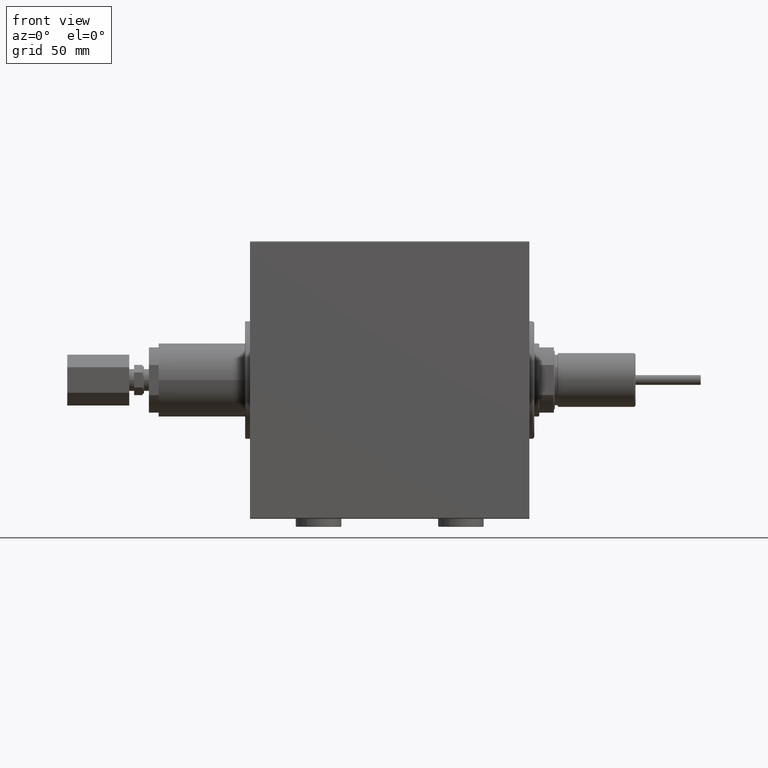
[diagram: clean part render]
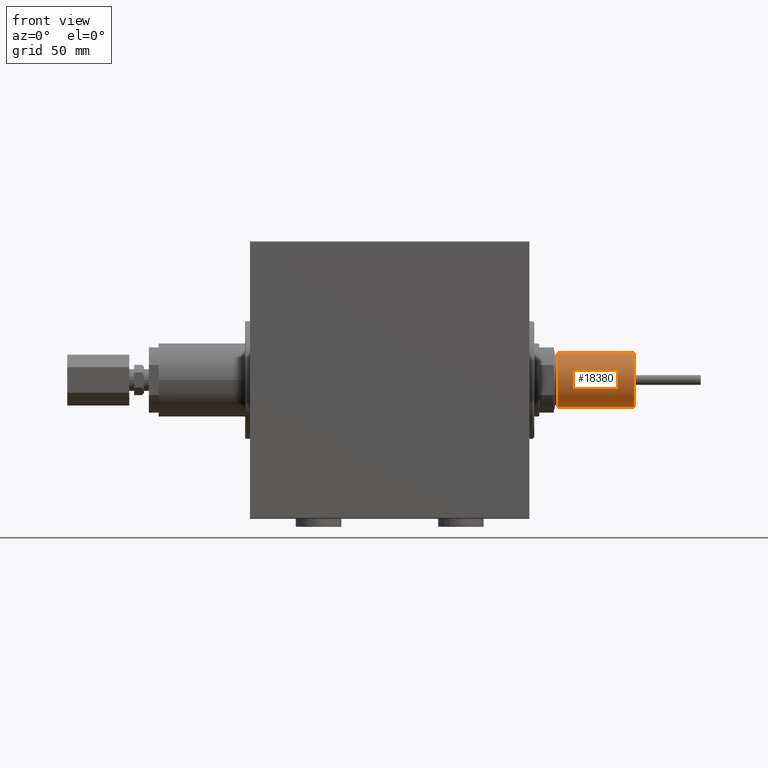
[diagram: same view with one face highlighted and labeled with its STEP entity id]
A machine part, front view. The second image highlights one B-rep face of the part: STEP entity #18380.
In plain terms, the highlighted cylindrical surface (edge-blend (fillet) strip) has radius 16.5 mm, axis along (1, -0, -0).
Its self-contained STEP definition (entity closure, byte-faithful):
#1760 = DIRECTION ( 'NONE',  ( 1.000000000000000000, 0.000000000000000000, 0.000000000000000000 ) ) ;
#5111 = CARTESIAN_POINT ( 'NONE',  ( 16.50000000000000000, 2.020667218593133100E-15, 47.50000000000000000 ) ) ;
#6010 = EDGE_LOOP ( 'NONE', ( #37396, #44256, #17176, #38882 ) ) ;
#7044 = EDGE_CURVE ( 'NONE', #18785, #34228, #40392, .T. ) ;
#7738 = EDGE_CURVE ( 'NONE', #34228, #34990, #27996, .T. ) ;
#8960 = AXIS2_PLACEMENT_3D ( 'NONE', #35546, #31128, #1760 ) ;
#9610 = CARTESIAN_POINT ( 'NONE',  ( 0.000000000000000000, 0.000000000000000000, 0.7999999999999951594 ) ) ;
#9931 = LINE ( 'NONE', #40240, #10756 ) ;
#10727 = VERTEX_POINT ( 'NONE', #45688 ) ;
#10756 = VECTOR ( 'NONE', #17559, 1000.000000000000000 ) ;
#11596 = CYLINDRICAL_SURFACE ( 'NONE', #37497, 16.50000000000000000 ) ;
#12410 = AXIS2_PLACEMENT_3D ( 'NONE', #9610, #16546, #20472 ) ;
#13203 = DIRECTION ( 'NONE',  ( -0.000000000000000000, -0.000000000000000000, -1.000000000000000000 ) ) ;
#15548 = FACE_OUTER_BOUND ( 'NONE', #6010, .T. ) ;
#16546 = DIRECTION ( 'NONE',  ( -0.000000000000000000, -0.000000000000000000, 1.000000000000000000 ) ) ;
#17176 = ORIENTED_EDGE ( 'NONE', *, *, #25298, .T. ) ;
#17559 = DIRECTION ( 'NONE',  ( -0.000000000000000000, -0.000000000000000000, -1.000000000000000000 ) ) ;
#18380 = ADVANCED_FACE ( 'NONE', ( #15548 ), #11596, .T. ) ;
#18785 = VERTEX_POINT ( 'NONE', #36577 ) ;
#20309 = EDGE_CURVE ( 'NONE', #10727, #34990, #33621, .T. ) ;
#20472 = DIRECTION ( 'NONE',  ( 1.000000000000000000, 0.000000000000000000, 0.000000000000000000 ) ) ;
#22922 = DIRECTION ( 'NONE',  ( -0.000000000000000000, -0.000000000000000000, -1.000000000000000000 ) ) ;
#25298 = EDGE_CURVE ( 'NONE', #18785, #10727, #9931, .T. ) ;
#27996 = LINE ( 'NONE', #46263, #32553 ) ;
#30574 = DIRECTION ( 'NONE',  ( -1.000000000000000000, 0.000000000000000000, 0.000000000000000000 ) ) ;
#31128 = DIRECTION ( 'NONE',  ( 0.000000000000000000, 0.000000000000000000, 1.000000000000000000 ) ) ;
#32553 = VECTOR ( 'NONE', #13203, 1000.000000000000000 ) ;
#33539 = CARTESIAN_POINT ( 'NONE',  ( 16.50000000000000000, 2.020667218593133100E-15, 0.7999999999999951594 ) ) ;
#33621 = CIRCLE ( 'NONE', #12410, 16.50000000000000000 ) ;
#34228 = VERTEX_POINT ( 'NONE', #5111 ) ;
#34990 = VERTEX_POINT ( 'NONE', #33539 ) ;
#35546 = CARTESIAN_POINT ( 'NONE',  ( 0.000000000000000000, 0.000000000000000000, 47.50000000000000000 ) ) ;
#36577 = CARTESIAN_POINT ( 'NONE',  ( -16.50000000000000000, 0.000000000000000000, 47.50000000000000000 ) ) ;
#37396 = ORIENTED_EDGE ( 'NONE', *, *, #7738, .F. ) ;
#37497 = AXIS2_PLACEMENT_3D ( 'NONE', #41667, #22922, #30574 ) ;
#38882 = ORIENTED_EDGE ( 'NONE', *, *, #20309, .T. ) ;
#40240 = CARTESIAN_POINT ( 'NONE',  ( -16.50000000000000000, 0.000000000000000000, 47.50000000000000000 ) ) ;
#40392 = CIRCLE ( 'NONE', #8960, 16.50000000000000000 ) ;
#41667 = CARTESIAN_POINT ( 'NONE',  ( 0.000000000000000000, 0.000000000000000000, 47.50000000000000000 ) ) ;
#44256 = ORIENTED_EDGE ( 'NONE', *, *, #7044, .F. ) ;
#45688 = CARTESIAN_POINT ( 'NONE',  ( -16.50000000000000000, 0.000000000000000000, 0.7999999999999951594 ) ) ;
#46263 = CARTESIAN_POINT ( 'NONE',  ( 16.50000000000000000, 2.020667218593133100E-15, 47.50000000000000000 ) ) ;